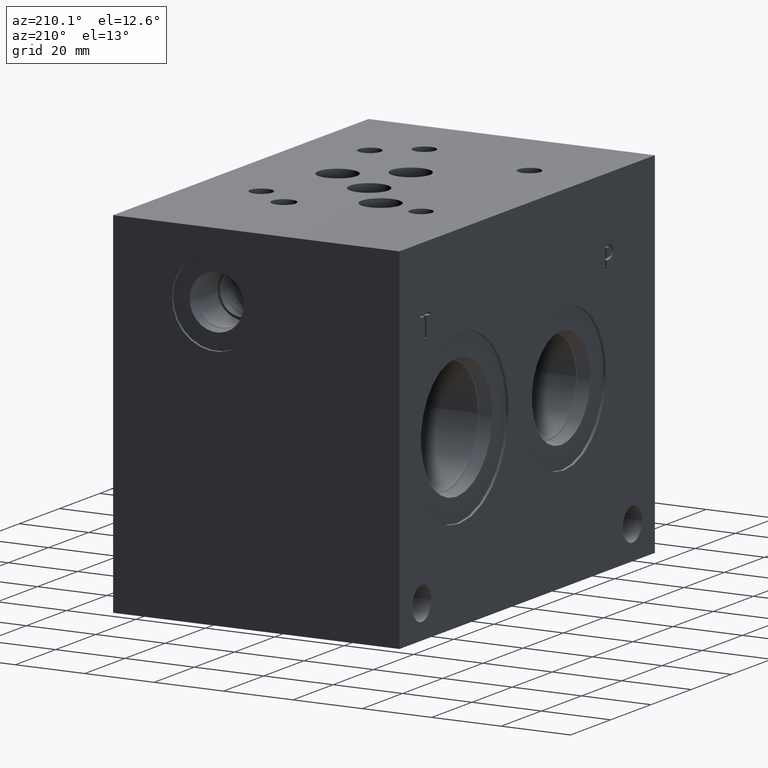
[diagram: clean part render]
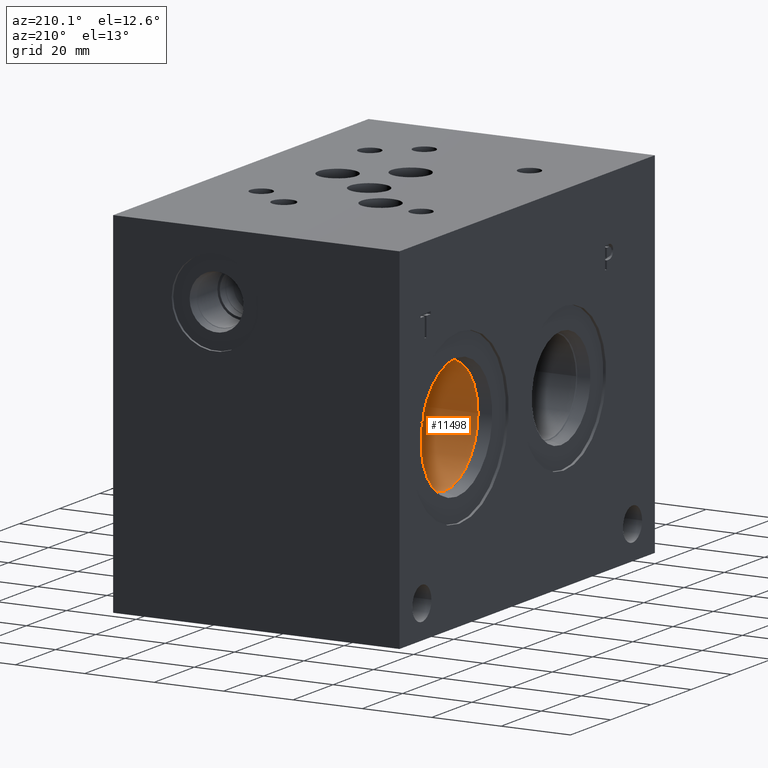
[diagram: same view with one face highlighted and labeled with its STEP entity id]
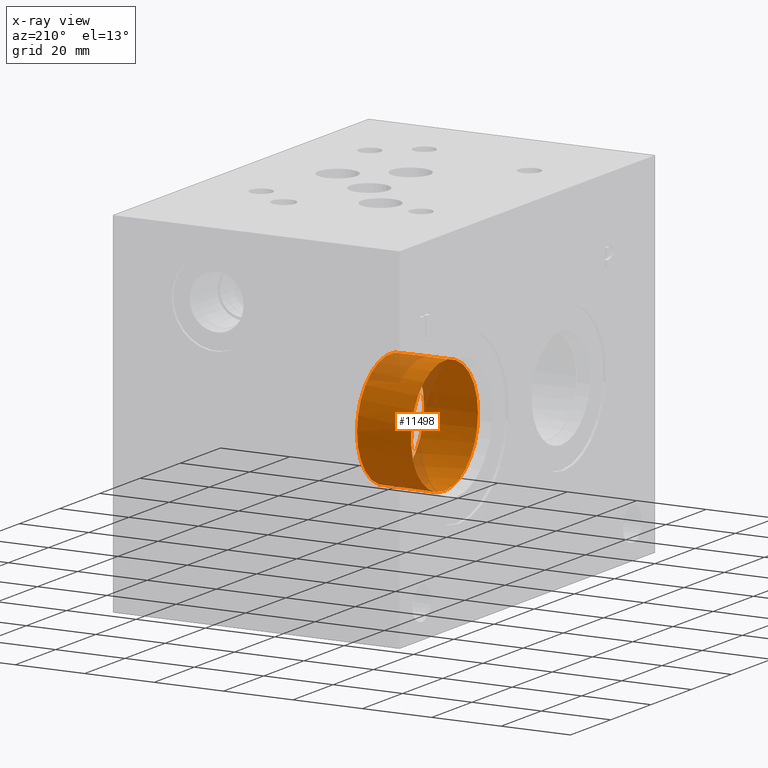
[diagram: x-ray of the same camera — body ghosted, the highlighted face saturated]
A machine part, auxiliary view. The second image highlights one B-rep face of the part: STEP entity #11498.
The next image is the same camera in x-ray: the body ghosted, the highlighted face saturated — about 14% of this face is hidden behind the body in this view.
In plain terms, the highlighted cylindrical surface (bore or boss wall) has radius 16.67 mm, axis along (-1, 0, 0).
Its self-contained STEP definition (entity closure, byte-faithful):
#58=CYLINDRICAL_SURFACE('',#12143,16.67);
#298=CIRCLE('',#12140,16.67);
#299=CIRCLE('',#12141,16.67);
#301=CIRCLE('',#12144,16.67);
#302=CIRCLE('',#12145,16.67);
#1411=FACE_OUTER_BOUND('',#2073,.T.);
#2073=EDGE_LOOP('',(#9909,#9910,#9911,#9912,#9913,#9914));
#3182=LINE('',#19585,#4262);
#4262=VECTOR('',#14472,16.67);
#5317=VERTEX_POINT('',#19575);
#5318=VERTEX_POINT('',#19576);
#5320=VERTEX_POINT('',#19582);
#5321=VERTEX_POINT('',#19583);
#6879=EDGE_CURVE('',#5317,#5318,#298,.T.);
#6880=EDGE_CURVE('',#5318,#5317,#299,.T.);
#6882=EDGE_CURVE('',#5320,#5321,#301,.T.);
#6883=EDGE_CURVE('',#5320,#5318,#3182,.T.);
#6884=EDGE_CURVE('',#5321,#5320,#302,.T.);
#9909=ORIENTED_EDGE('',*,*,#6882,.F.);
#9910=ORIENTED_EDGE('',*,*,#6883,.T.);
#9911=ORIENTED_EDGE('',*,*,#6879,.F.);
#9912=ORIENTED_EDGE('',*,*,#6880,.F.);
#9913=ORIENTED_EDGE('',*,*,#6883,.F.);
#9914=ORIENTED_EDGE('',*,*,#6884,.F.);
#11498=ADVANCED_FACE('',(#1411),#58,.F.);
#12140=AXIS2_PLACEMENT_3D('',#19577,#14462,#14463);
#12141=AXIS2_PLACEMENT_3D('',#19578,#14464,#14465);
#12143=AXIS2_PLACEMENT_3D('',#19581,#14468,#14469);
#12144=AXIS2_PLACEMENT_3D('',#19584,#14470,#14471);
#12145=AXIS2_PLACEMENT_3D('',#19586,#14473,#14474);
#14462=DIRECTION('center_axis',(-1.,0.,0.));
#14463=DIRECTION('ref_axis',(0.,1.,0.));
#14464=DIRECTION('center_axis',(-1.,0.,0.));
#14465=DIRECTION('ref_axis',(0.,1.,0.));
#14468=DIRECTION('center_axis',(-1.,0.,0.));
#14469=DIRECTION('ref_axis',(0.,1.,0.));
#14470=DIRECTION('center_axis',(1.,0.,0.));
#14471=DIRECTION('ref_axis',(0.,1.,0.));
#14472=DIRECTION('',(1.,0.,0.));
#14473=DIRECTION('center_axis',(1.,0.,0.));
#14474=DIRECTION('ref_axis',(0.,1.,0.));
#19575=CARTESIAN_POINT('',(19.8374,113.9266,50.8));
#19576=CARTESIAN_POINT('',(19.8374,80.5866,50.8));
#19577=CARTESIAN_POINT('Origin',(19.8374,97.2566,50.8));
#19578=CARTESIAN_POINT('Origin',(19.8374,97.2566,50.8));
#19581=CARTESIAN_POINT('Origin',(9.9187,97.2566,50.8));
#19582=CARTESIAN_POINT('',(4.2723,80.5866,50.8));
#19583=CARTESIAN_POINT('',(4.2723,97.2566,34.13));
#19584=CARTESIAN_POINT('Origin',(4.2723,97.2566,50.8));
#19585=CARTESIAN_POINT('',(9.9187,80.5866,50.8));
#19586=CARTESIAN_POINT('Origin',(4.2723,97.2566,50.8));